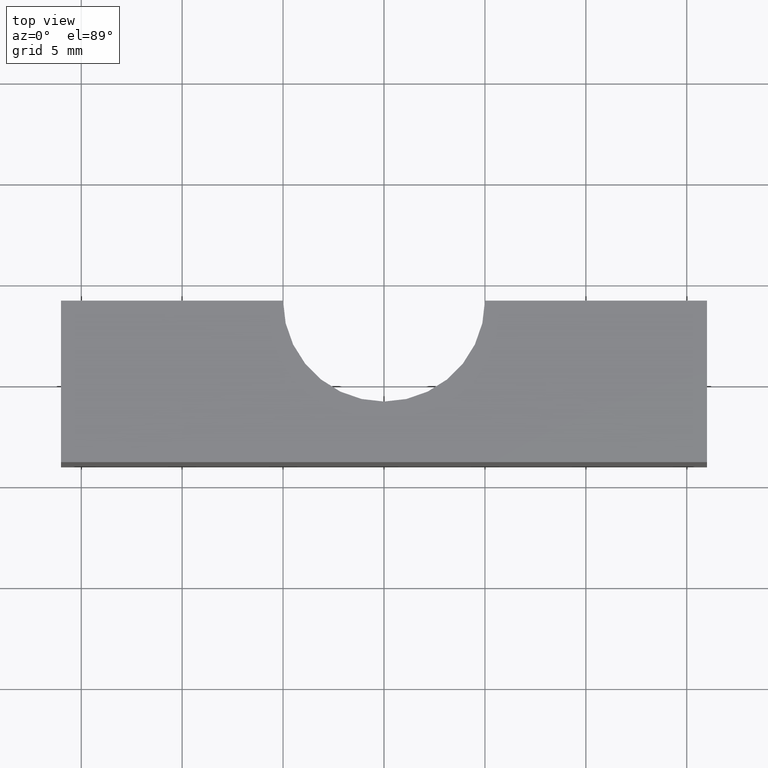
[diagram: clean part render]
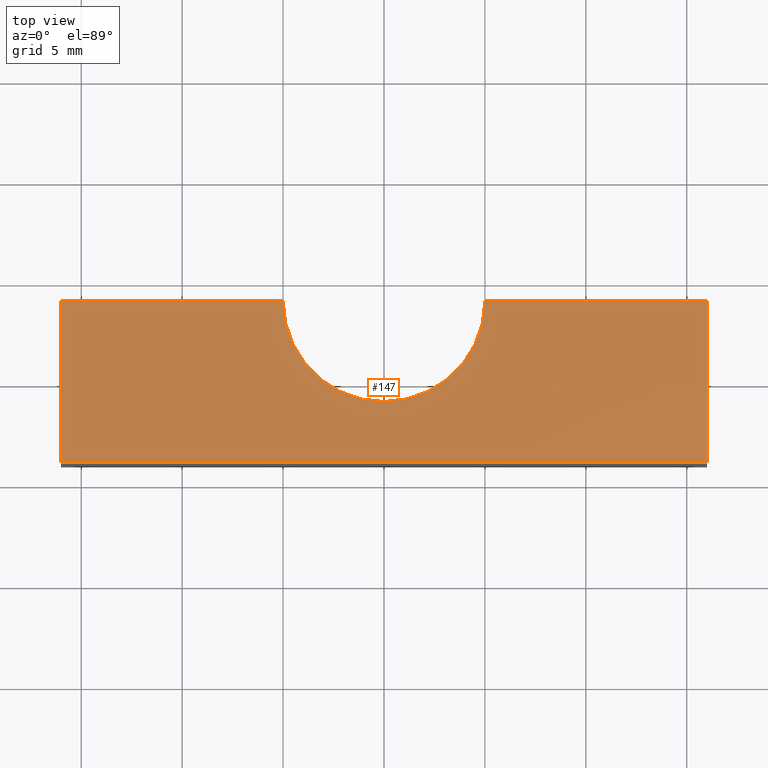
[diagram: same view with one face highlighted and labeled with its STEP entity id]
A machine part, top view. The second image highlights one B-rep face of the part: STEP entity #147.
In plain terms, the highlighted planar face has unit normal (0, 0, 1).
Its self-contained STEP definition (entity closure, byte-faithful):
#24=FACE_OUTER_BOUND('',#32,.T.);
#32=EDGE_LOOP('',(#127,#128,#129,#130,#131,#132));
#34=CIRCLE('',#176,5.);
#40=LINE('',#236,#56);
#43=LINE('',#241,#59);
#46=LINE('',#249,#62);
#48=LINE('',#253,#64);
#50=LINE('',#256,#66);
#56=VECTOR('',#194,10.);
#59=VECTOR('',#199,10.);
#62=VECTOR('',#208,10.);
#64=VECTOR('',#212,10.);
#66=VECTOR('',#216,10.);
#73=VERTEX_POINT('',#234);
#74=VERTEX_POINT('',#235);
#75=VERTEX_POINT('',#240);
#76=VERTEX_POINT('',#244);
#77=VERTEX_POINT('',#248);
#78=VERTEX_POINT('',#252);
#85=EDGE_CURVE('',#73,#74,#40,.T.);
#88=EDGE_CURVE('',#74,#75,#43,.T.);
#90=EDGE_CURVE('',#75,#76,#34,.T.);
#92=EDGE_CURVE('',#76,#77,#46,.T.);
#94=EDGE_CURVE('',#77,#78,#48,.T.);
#96=EDGE_CURVE('',#78,#73,#50,.T.);
#127=ORIENTED_EDGE('',*,*,#85,.F.);
#128=ORIENTED_EDGE('',*,*,#96,.F.);
#129=ORIENTED_EDGE('',*,*,#94,.F.);
#130=ORIENTED_EDGE('',*,*,#92,.F.);
#131=ORIENTED_EDGE('',*,*,#90,.F.);
#132=ORIENTED_EDGE('',*,*,#88,.F.);
#139=PLANE('',#180);
#147=ADVANCED_FACE('',(#24),#139,.T.);
#176=AXIS2_PLACEMENT_3D('',#245,#203,#204);
#180=AXIS2_PLACEMENT_3D('',#257,#217,#218);
#194=DIRECTION('',(0.,1.,0.));
#199=DIRECTION('',(1.,5.04646829375071E-17,0.));
#203=DIRECTION('center_axis',(0.,0.,1.));
#204=DIRECTION('ref_axis',(1.,-1.11022302462516E-16,0.));
#208=DIRECTION('',(1.,0.,0.));
#212=DIRECTION('',(0.,-1.,0.));
#216=DIRECTION('',(-1.,-1.90819582357449E-16,0.));
#217=DIRECTION('center_axis',(0.,0.,1.));
#218=DIRECTION('ref_axis',(1.,0.,0.));
#234=CARTESIAN_POINT('',(-16.,-4.,7.5));
#235=CARTESIAN_POINT('',(-16.,4.,7.5));
#236=CARTESIAN_POINT('',(-16.,4.,7.5));
#240=CARTESIAN_POINT('',(-5.,4.,7.5));
#241=CARTESIAN_POINT('',(-5.,4.,7.5));
#244=CARTESIAN_POINT('',(5.,4.,7.5));
#245=CARTESIAN_POINT('Origin',(0.,4.,7.5));
#248=CARTESIAN_POINT('',(16.,4.,7.5));
#249=CARTESIAN_POINT('',(16.,4.,7.5));
#252=CARTESIAN_POINT('',(16.,-3.99999999999999,7.5));
#253=CARTESIAN_POINT('',(16.,-3.99999999999999,7.5));
#256=CARTESIAN_POINT('',(-16.,-4.,7.5));
#257=CARTESIAN_POINT('Origin',(-1.38777878078145E-15,-0.259581799378332,
7.5));